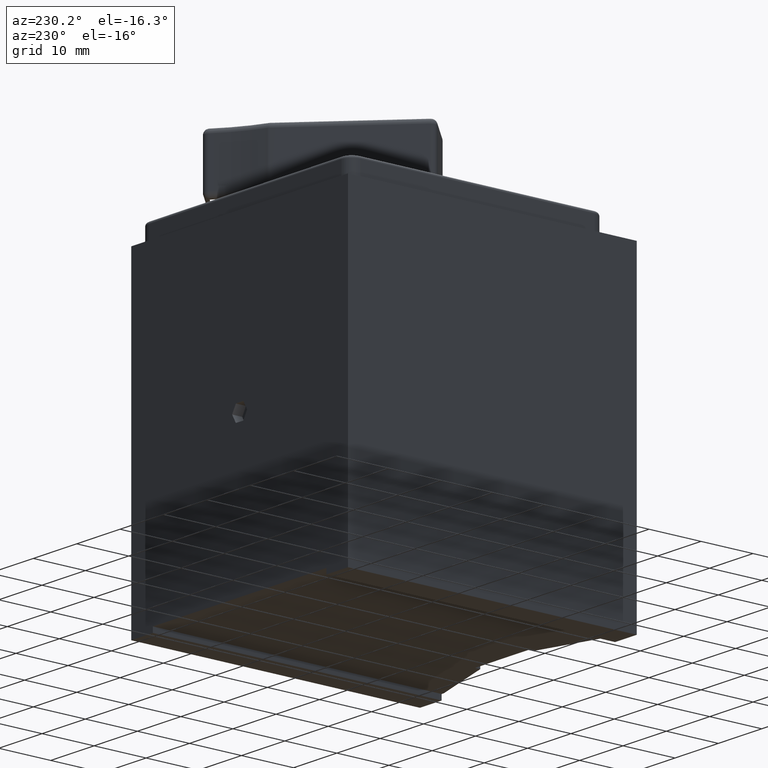
[diagram: clean part render]
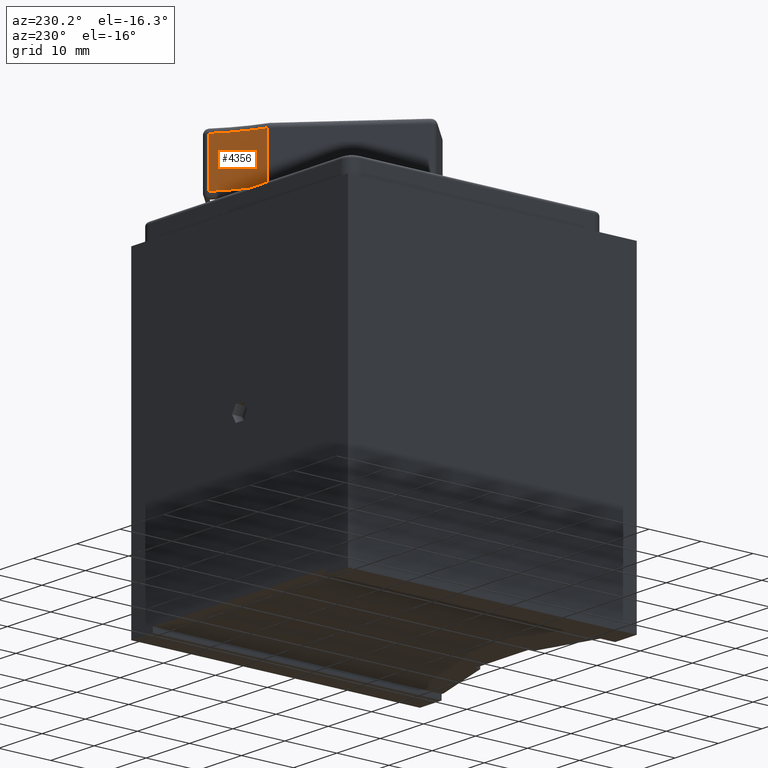
[diagram: same view with one face highlighted and labeled with its STEP entity id]
A machine part, auxiliary view. The second image highlights one B-rep face of the part: STEP entity #4356.
In plain terms, the highlighted cylindrical surface (partial cylindrical patch) has radius 27.3481 mm, axis along (-0, -0, -1).
Its self-contained STEP definition (entity closure, byte-faithful):
#164 = DIRECTION ( 'NONE',  ( -0.0000000000000000000, -0.0000000000000000000, -1.000000000000000000 ) ) ;
#254 = DIRECTION ( 'NONE',  ( 1.000000000000000000, 0.0000000000000000000, 0.0000000000000000000 ) ) ;
#385 = VECTOR ( 'NONE', #4537, 1000.000000000000000 ) ;
#389 = AXIS2_PLACEMENT_3D ( 'NONE', #4453, #723, #5812 ) ;
#447 = VECTOR ( 'NONE', #710, 1000.000000000000000 ) ;
#552 = CARTESIAN_POINT ( 'NONE',  ( 8.211087193240759400, 21.13065539228778200, 124.6999999999761900 ) ) ;
#635 = CARTESIAN_POINT ( 'NONE',  ( -9.789630165274843400, 41.71935658979384000, 115.7999999999761900 ) ) ;
#710 = DIRECTION ( 'NONE',  ( 0.0000000000000000000, 0.0000000000000000000, 1.000000000000000000 ) ) ;
#723 = DIRECTION ( 'NONE',  ( -0.0000000000000000000, -0.0000000000000000000, -1.000000000000000000 ) ) ;
#1071 = DIRECTION ( 'NONE',  ( 1.000000000000000000, 0.0000000000000000000, 0.0000000000000000000 ) ) ;
#1212 = CIRCLE ( 'NONE', #4564, 27.34813416709359800 ) ;
#1562 = CYLINDRICAL_SURFACE ( 'NONE', #389, 27.34813416709359800 ) ;
#1792 = ORIENTED_EDGE ( 'NONE', *, *, #4218, .T. ) ;
#2117 = DIRECTION ( 'NONE',  ( 0.0000000000000000000, 0.0000000000000000000, 1.000000000000000000 ) ) ;
#2339 = CARTESIAN_POINT ( 'NONE',  ( 0.4296111084192448200, 16.35230019352706100, 124.6999999999761900 ) ) ;
#2562 = CARTESIAN_POINT ( 'NONE',  ( 0.4296111084192456600, 16.35230019352706100, 115.7999999999761900 ) ) ;
#2624 = CARTESIAN_POINT ( 'NONE',  ( 8.211087193240755900, 21.13065539228778200, 125.6999999999761900 ) ) ;
#2699 = EDGE_CURVE ( 'NONE', #5365, #3146, #4279, .T. ) ;
#2745 = VERTEX_POINT ( 'NONE', #4535 ) ;
#2860 = LINE ( 'NONE', #2624, #385 ) ;
#3005 = CARTESIAN_POINT ( 'NONE',  ( 0.4296111084192456600, 16.35230019352706100, 125.6999999999761900 ) ) ;
#3095 = ORIENTED_EDGE ( 'NONE', *, *, #3177, .T. ) ;
#3146 = VERTEX_POINT ( 'NONE', #552 ) ;
#3177 = EDGE_CURVE ( 'NONE', #4984, #5365, #5919, .T. ) ;
#3854 = ORIENTED_EDGE ( 'NONE', *, *, #4498, .T. ) ;
#3986 = EDGE_LOOP ( 'NONE', ( #3854, #1792, #3095, #5183 ) ) ;
#4218 = EDGE_CURVE ( 'NONE', #2745, #4984, #1212, .T. ) ;
#4279 = CIRCLE ( 'NONE', #4918, 27.34813416709359800 ) ;
#4356 = ADVANCED_FACE ( 'NONE', ( #4833 ), #1562, .F. ) ;
#4453 = CARTESIAN_POINT ( 'NONE',  ( -9.789630165274843400, 41.71935658979384000, 125.6999999999761900 ) ) ;
#4498 = EDGE_CURVE ( 'NONE', #3146, #2745, #2860, .T. ) ;
#4535 = CARTESIAN_POINT ( 'NONE',  ( 8.211087193240755900, 21.13065539228778200, 115.7999999999761900 ) ) ;
#4537 = DIRECTION ( 'NONE',  ( -0.0000000000000000000, -0.0000000000000000000, -1.000000000000000000 ) ) ;
#4564 = AXIS2_PLACEMENT_3D ( 'NONE', #635, #164, #1071 ) ;
#4833 = FACE_OUTER_BOUND ( 'NONE', #3986, .T. ) ;
#4918 = AXIS2_PLACEMENT_3D ( 'NONE', #5312, #2117, #254 ) ;
#4984 = VERTEX_POINT ( 'NONE', #2562 ) ;
#5183 = ORIENTED_EDGE ( 'NONE', *, *, #2699, .T. ) ;
#5312 = CARTESIAN_POINT ( 'NONE',  ( -9.789630165274843400, 41.71935658979384000, 124.6999999999761900 ) ) ;
#5365 = VERTEX_POINT ( 'NONE', #2339 ) ;
#5812 = DIRECTION ( 'NONE',  ( -1.000000000000000000, 0.0000000000000000000, 0.0000000000000000000 ) ) ;
#5919 = LINE ( 'NONE', #3005, #447 ) ;